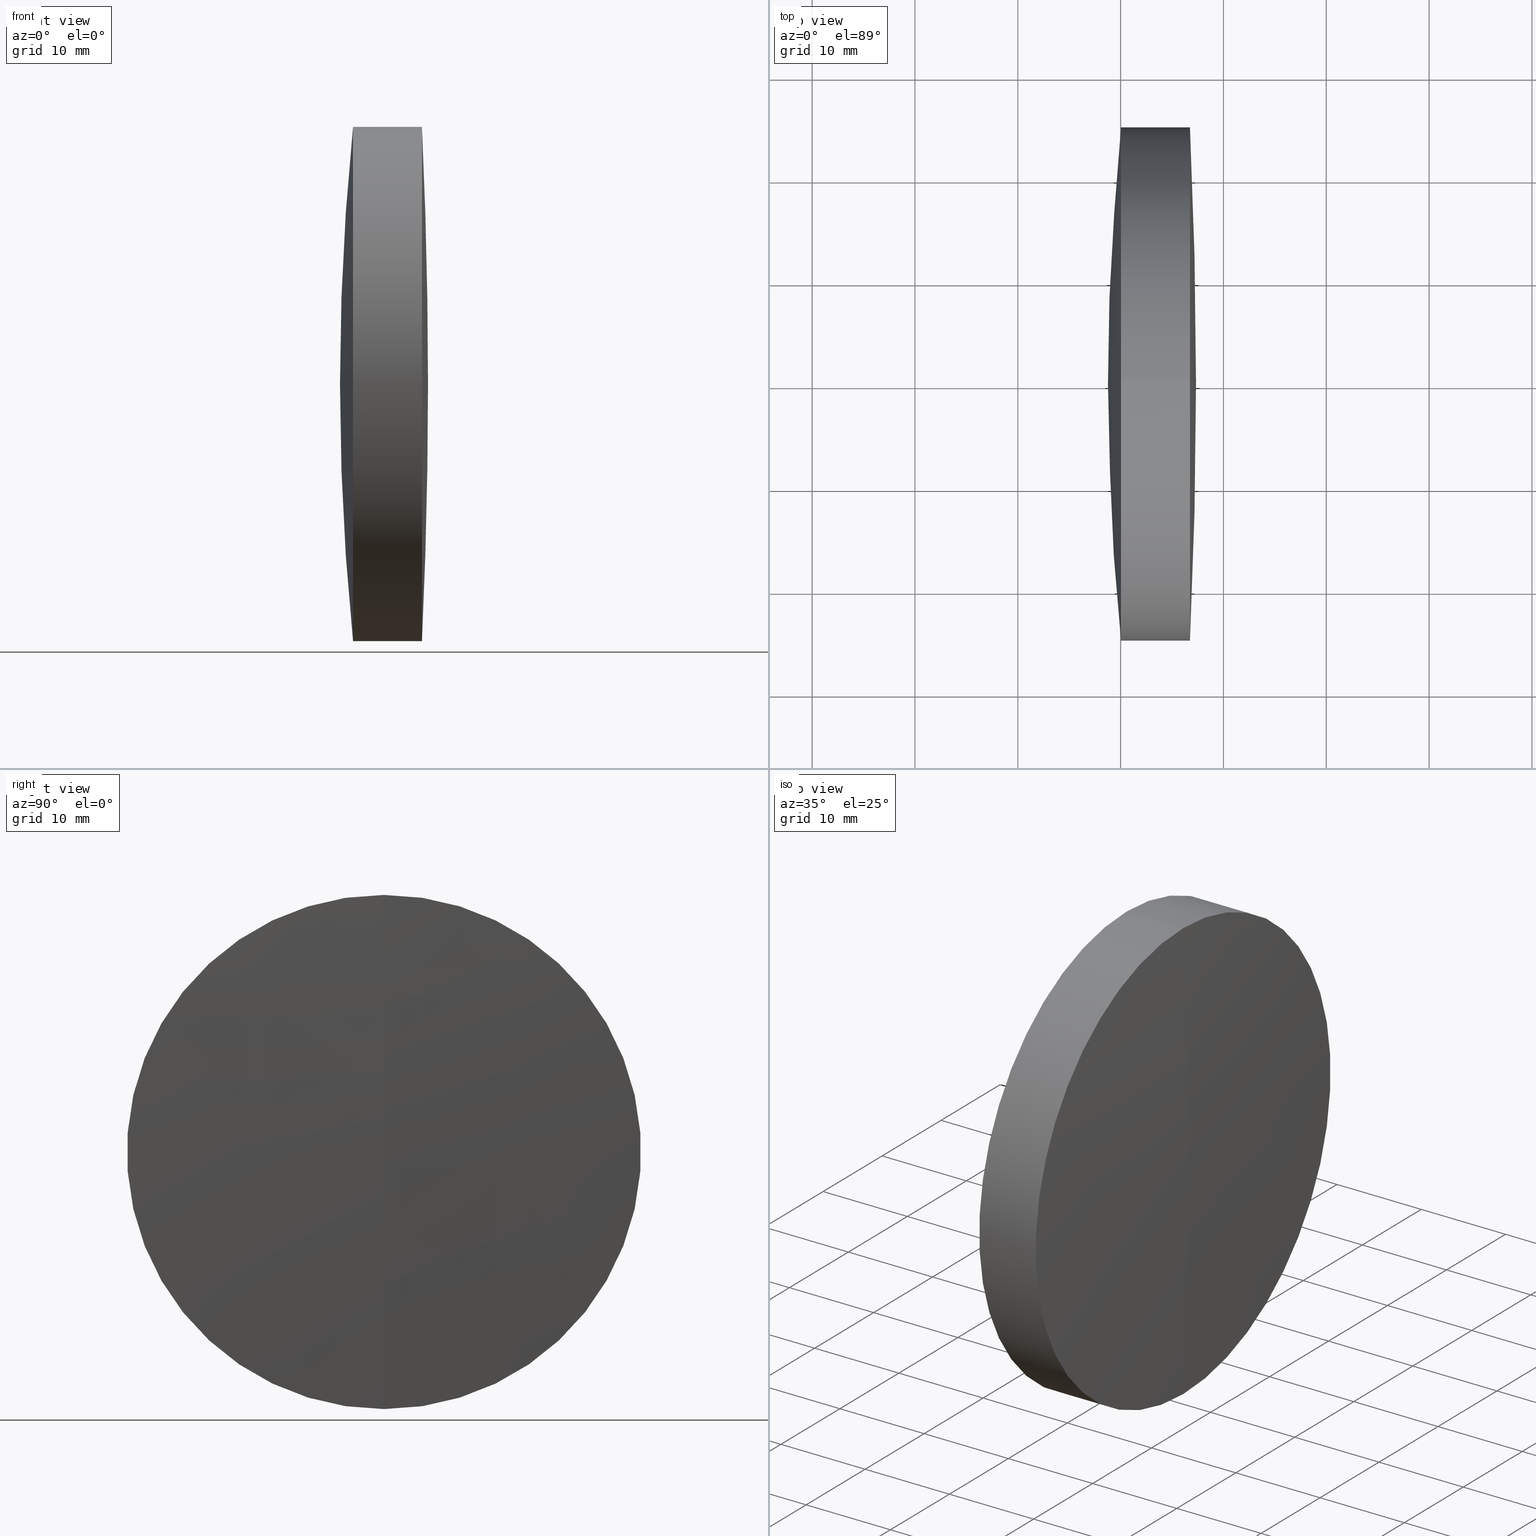
[diagram: canonical four-view strip — front | top / right | iso, engineering-drawing reading convention]
A machine part, canonical four-view strip (front | top / right | iso — engineering-drawing reading convention). The complete STEP part file that produces these views, byte-faithful:
ISO-10303-21;
HEADER;
FILE_DESCRIPTION (( 'STEP AP214' ),
    '1' );
FILE_NAME ('145082.STEP',
    '2019-05-16T05:50:06',
    ( 'user' ),
    ( '΢���й�' ),
    'SwSTEP 2.0',
    'SolidWorks 2016',
    '' );
FILE_SCHEMA (( 'AUTOMOTIVE_DESIGN' ));
ENDSEC;

DATA;
#1 = EDGE_LOOP ( 'NONE', ( #344, #215, #46, #134 ) ) ;
#2 = EDGE_CURVE ( 'NONE', #116, #27, #72, .T. ) ;
#3 = DIRECTION ( 'NONE',  ( 0.0000000000000000000, 1.000000000000000000, 0.0000000000000000000 ) ) ;
#4 = EDGE_CURVE ( 'NONE', #42, #206, #63, .T. ) ;
#5 = DIRECTION ( 'NONE',  ( 0.0000000000000000000, 0.0000000000000000000, 1.000000000000000000 ) ) ;
#6 = ORIENTED_EDGE ( 'NONE', *, *, #237, .F. ) ;
#7 = ORIENTED_EDGE ( 'NONE', *, *, #300, .F. ) ;
#8 = DIRECTION ( 'NONE',  ( 0.0000000000000000000, 0.0000000000000000000, 1.000000000000000000 ) ) ;
#9 = CARTESIAN_POINT ( 'NONE',  ( 102.0910746197044700, 0.0000000000000000000, 2.604248106336167600E-013 ) ) ;
#10 = EDGE_CURVE ( 'NONE', #42, #326, #14, .T. ) ;
#11 = CARTESIAN_POINT ( 'NONE',  ( 102.0910746197044700, 0.0000000000000000000, 2.604248106336167600E-013 ) ) ;
#12 = SURFACE_STYLE_USAGE ( .BOTH. , #122 ) ;
#13 = VERTEX_POINT ( 'NONE', #330 ) ;
#14 = CIRCLE ( 'NONE', #159, 162.2400000000000100 ) ;
#15 = VERTEX_POINT ( 'NONE', #214 ) ;
#16 = DIRECTION ( 'NONE',  ( 0.0000000000000000000, 0.0000000000000000000, -1.000000000000000000 ) ) ;
#17 = DIRECTION ( 'NONE',  ( 0.0000000000000000000, 0.0000000000000000000, 1.000000000000000000 ) ) ;
#18 = EDGE_CURVE ( 'NONE', #15, #52, #146, .T. ) ;
#19 = CYLINDRICAL_SURFACE ( 'NONE', #53, 25.00000000000008500 ) ;
#20 = DIRECTION ( 'NONE',  ( 0.0000000000000000000, -1.000000000000000000, 0.0000000000000000000 ) ) ;
#21 = PRESENTATION_LAYER_ASSIGNMENT (  '', '', ( #225 ) ) ;
#22 = ORIENTED_EDGE ( 'NONE', *, *, #49, .T. ) ;
#23 = ADVANCED_FACE ( 'NONE', ( #322 ), #112, .T. ) ;
#24 = AXIS2_PLACEMENT_3D ( 'NONE', #193, #199, #36 ) ;
#25 = ADVANCED_FACE ( 'NONE', ( #294 ), #19, .T. ) ;
#26 = DIRECTION ( 'NONE',  ( 0.0000000000000000000, 0.0000000000000000000, 1.000000000000000000 ) ) ;
#27 = VERTEX_POINT ( 'NONE', #272 ) ;
#28 = FACE_OUTER_BOUND ( 'NONE', #233, .T. ) ;
#29 =( LENGTH_UNIT ( ) NAMED_UNIT ( * ) SI_UNIT ( .MILLI., .METRE. ) );
#30 = PRODUCT_DEFINITION_SHAPE ( 'NONE', 'NONE',  #207 ) ;
#31 = DIRECTION ( 'NONE',  ( 0.0000000000000000000, 1.000000000000000000, 0.0000000000000000000 ) ) ;
#32 = ORIENTED_EDGE ( 'NONE', *, *, #180, .F. ) ;
#33 = AXIS2_PLACEMENT_3D ( 'NONE', #104, #295, #186 ) ;
#34 = APPLICATION_PROTOCOL_DEFINITION ( 'draft international standard', 'automotive_design', 1998, #182 ) ;
#35 = VECTOR ( 'NONE', #296, 1000.000000000000000 ) ;
#36 = DIRECTION ( 'NONE',  ( 0.0000000000000000000, 0.0000000000000000000, 1.000000000000000000 ) ) ;
#37 = CIRCLE ( 'NONE', #118, 530.6399999999998700 ) ;
#38 = ORIENTED_EDGE ( 'NONE', *, *, #300, .T. ) ;
#39 = APPLICATION_PROTOCOL_DEFINITION ( 'draft international standard', 'automotive_design', 1998, #137 ) ;
#40 = COLOUR_RGB ( '',1.000000000000000000, 1.000000000000000000, 1.000000000000000000 ) ;
#41 = AXIS2_PLACEMENT_3D ( 'NONE', #274, #89, #16 ) ;
#42 = VERTEX_POINT ( 'NONE', #147 ) ;
#43 = CIRCLE ( 'NONE', #259, 162.2400000000000100 ) ;
#44 = DIRECTION ( 'NONE',  ( 0.0000000000000000000, 0.0000000000000000000, 1.000000000000000000 ) ) ;
#45 = DIRECTION ( 'NONE',  ( 0.0000000000000000000, 1.000000000000000000, 0.0000000000000000000 ) ) ;
#46 = ORIENTED_EDGE ( 'NONE', *, *, #218, .F. ) ;
#47 = CARTESIAN_POINT ( 'NONE',  ( 260.0409607472518000, 0.0000000000000000000, 0.0000000000000000000 ) ) ;
#48 = SPHERICAL_SURFACE ( 'NONE', #317, 162.2400000000000100 ) ;
#49 = EDGE_CURVE ( 'NONE', #138, #13, #169, .T. ) ;
#50 = ORIENTED_EDGE ( 'NONE', *, *, #180, .T. ) ;
#51 = DIRECTION ( 'NONE',  ( 0.0000000000000000000, -1.224646799147353200E-016, 1.000000000000000000 ) ) ;
#52 = VERTEX_POINT ( 'NONE', #290 ) ;
#53 = AXIS2_PLACEMENT_3D ( 'NONE', #258, #314, #257 ) ;
#54 =( LENGTH_UNIT ( ) NAMED_UNIT ( * ) SI_UNIT ( .MILLI., .METRE. ) );
#55 = SPHERICAL_SURFACE ( 'NONE', #232, 530.6399999999998700 ) ;
#56 = FILL_AREA_STYLE_COLOUR ( '', #40 ) ;
#57 = SHAPE_DEFINITION_REPRESENTATION ( #30, #216 ) ;
#58 = CARTESIAN_POINT ( 'NONE',  ( -0.5519199926577972300, 3.061616997868370000E-015, -24.99999999999989300 ) ) ;
#59 = ORIENTED_EDGE ( 'NONE', *, *, #4, .T. ) ;
#60 = PRODUCT_RELATED_PRODUCT_CATEGORY ( 'part', '', ( #187 ) ) ;
#61 = DIRECTION ( 'NONE',  ( 0.0000000000000000000, 1.000000000000000000, 0.0000000000000000000 ) ) ;
#62 = VECTOR ( 'NONE', #157, 1000.000000000000000 ) ;
#63 = CIRCLE ( 'NONE', #144, 162.2400000000000100 ) ;
#64 = COLOUR_RGB ( '',1.000000000000000000, 1.000000000000000000, 1.000000000000000000 ) ;
#65 = DIRECTION ( 'NONE',  ( -0.0000000000000000000, 1.000000000000000000, 1.224646799147353200E-016 ) ) ;
#66 = DIRECTION ( 'NONE',  ( 0.0000000000000000000, -1.000000000000000000, 0.0000000000000000000 ) ) ;
#67 = ORIENTED_EDGE ( 'NONE', *, *, #18, .F. ) ;
#68 = ADVANCED_FACE ( 'NONE', ( #247 ), #81, .T. ) ;
#69 = DIRECTION ( 'NONE',  ( 1.000000000000000000, 0.0000000000000000000, 0.0000000000000000000 ) ) ;
#70 = AXIS2_PLACEMENT_3D ( 'NONE', #197, #282, #5 ) ;
#71 = ADVANCED_FACE ( 'NONE', ( #91 ), #132, .T. ) ;
#72 = CIRCLE ( 'NONE', #200, 24.99999999999968000 ) ;
#73 =( NAMED_UNIT ( * ) PLANE_ANGLE_UNIT ( ) SI_UNIT ( $, .RADIAN. ) );
#74 = CARTESIAN_POINT ( 'NONE',  ( 262.3933440983366300, 0.0000000000000000000, 0.0000000000000000000 ) ) ;
#75 = AXIS2_PLACEMENT_3D ( 'NONE', #11, #231, #328 ) ;
#76 = ORIENTED_EDGE ( 'NONE', *, *, #4, .F. ) ;
#77 = DIRECTION ( 'NONE',  ( 0.0000000000000000000, 0.0000000000000000000, 1.000000000000000000 ) ) ;
#78 = DIRECTION ( 'NONE',  ( -1.000000000000000000, -0.0000000000000000000, -0.0000000000000000000 ) ) ;
#79 = UNCERTAINTY_MEASURE_WITH_UNIT (LENGTH_MEASURE( 1.000000000000000100E-005 ), #54, 'distance_accuracy_value', 'NONE');
#80 = ORIENTED_EDGE ( 'NONE', *, *, #253, .T. ) ;
#81 = SPHERICAL_SURFACE ( 'NONE', #133, 162.2400000000000100 ) ;
#82 = SURFACE_STYLE_USAGE ( .BOTH. , #151 ) ;
#83 = DIRECTION ( 'NONE',  ( -1.000000000000000000, -0.0000000000000000000, -0.0000000000000000000 ) ) ;
#84 = EDGE_CURVE ( 'NONE', #254, #138, #43, .T. ) ;
#85 = CARTESIAN_POINT ( 'NONE',  ( 102.0910746197044700, 0.0000000000000000000, 2.604248106336167600E-013 ) ) ;
#86 = ORIENTED_EDGE ( 'NONE', *, *, #130, .F. ) ;
#87 = CARTESIAN_POINT ( 'NONE',  ( 505.4910746197044200, 0.0000000000000000000, -1.842447540899294800E-013 ) ) ;
#88 = AXIS2_PLACEMENT_3D ( 'NONE', #263, #345, #69 ) ;
#89 = DIRECTION ( 'NONE',  ( 0.0000000000000000000, -1.000000000000000000, 0.0000000000000000000 ) ) ;
#90 = FACE_OUTER_BOUND ( 'NONE', #298, .T. ) ;
#91 = FACE_OUTER_BOUND ( 'NONE', #168, .T. ) ;
#92 = DIRECTION ( 'NONE',  ( 0.0000000000000000000, 1.000000000000000000, 0.0000000000000000000 ) ) ;
#93 = SURFACE_STYLE_FILL_AREA ( #94 ) ;
#94 = FILL_AREA_STYLE ('',( #56 ) ) ;
#95 = CARTESIAN_POINT ( 'NONE',  ( 258.7710746197045100, 0.0000000000000000000, -1.691375111756477200E-013 ) ) ;
#96 = ORIENTED_EDGE ( 'NONE', *, *, #252, .T. ) ;
#97 = ORIENTED_EDGE ( 'NONE', *, *, #252, .F. ) ;
#98 = CARTESIAN_POINT ( 'NONE',  ( -263.3089253802954800, 0.0000000000000000000, 0.0000000000000000000 ) ) ;
#99 = CARTESIAN_POINT ( 'NONE',  ( 102.0910746197044700, 0.0000000000000000000, 2.604248106336167600E-013 ) ) ;
#100 = PRESENTATION_LAYER_ASSIGNMENT (  '', '', ( #107 ) ) ;
#101 = CIRCLE ( 'NONE', #110, 25.00000000000008500 ) ;
#102 = CARTESIAN_POINT ( 'NONE',  ( 264.3310746197045100, 0.0000000000000000000, 2.703591454683000400E-013 ) ) ;
#103 = ADVANCED_FACE ( 'NONE', ( #28 ), #240, .T. ) ;
#104 = CARTESIAN_POINT ( 'NONE',  ( -263.3089253802954800, 0.0000000000000000000, 0.0000000000000000000 ) ) ;
#105 = PRODUCT_DEFINITION_CONTEXT ( 'detailed design', #182, 'design' ) ;
#106 = FILL_AREA_STYLE_COLOUR ( '', #64 ) ;
#107 = STYLED_ITEM ( 'NONE', ( #222 ), #216 ) ;
#108 = ORIENTED_EDGE ( 'NONE', *, *, #220, .F. ) ;
#109 = VECTOR ( 'NONE', #337, 1000.000000000000000 ) ;
#110 = AXIS2_PLACEMENT_3D ( 'NONE', #117, #78, #153 ) ;
#111 = VECTOR ( 'NONE', #83, 1000.000000000000000 ) ;
#112 = CYLINDRICAL_SURFACE ( 'NONE', #319, 24.99999999999989300 ) ;
#113 =( LENGTH_UNIT ( ) NAMED_UNIT ( * ) SI_UNIT ( .MILLI., .METRE. ) );
#114 = AXIS2_PLACEMENT_3D ( 'NONE', #74, #287, #318 ) ;
#115 = DIRECTION ( 'NONE',  ( 0.0000000000000000000, 0.0000000000000000000, 1.000000000000000000 ) ) ;
#116 = VERTEX_POINT ( 'NONE', #260 ) ;
#117 = CARTESIAN_POINT ( 'NONE',  ( 262.3933440983366300, 0.0000000000000000000, 0.0000000000000000000 ) ) ;
#118 = AXIS2_PLACEMENT_3D ( 'NONE', #267, #278, #173 ) ;
#119 = CARTESIAN_POINT ( 'NONE',  ( 102.0910746197044700, 0.0000000000000000000, 2.604248106336167600E-013 ) ) ;
#120 = CIRCLE ( 'NONE', #201, 25.00000000000008500 ) ;
#121 = FACE_OUTER_BOUND ( 'NONE', #164, .T. ) ;
#122 = SURFACE_SIDE_STYLE ('',( #170 ) ) ;
#123 = AXIS2_PLACEMENT_3D ( 'NONE', #255, #174, #8 ) ;
#124 = DIRECTION ( 'NONE',  ( 0.0000000000000000000, 0.0000000000000000000, 1.000000000000000000 ) ) ;
#125 =( NAMED_UNIT ( * ) PLANE_ANGLE_UNIT ( ) SI_UNIT ( $, .RADIAN. ) );
#126 = ADVANCED_FACE ( 'NONE', ( #121 ), #304, .T. ) ;
#127 = ORIENTED_EDGE ( 'NONE', *, *, #49, .F. ) ;
#128 = EDGE_LOOP ( 'NONE', ( #76, #250, #6 ) ) ;
#129 = ADVANCED_FACE ( 'NONE', ( #152 ), #229, .F. ) ;
#130 = EDGE_CURVE ( 'NONE', #52, #156, #203, .T. ) ;
#131 = CARTESIAN_POINT ( 'NONE',  ( 267.3310746197044000, 0.0000000000000000000, 3.249232887497756800E-014 ) ) ;
#132 = CYLINDRICAL_SURFACE ( 'NONE', #166, 25.00000000000008500 ) ;
#133 = AXIS2_PLACEMENT_3D ( 'NONE', #189, #45, #17 ) ;
#134 = ORIENTED_EDGE ( 'NONE', *, *, #312, .F. ) ;
#135 = CARTESIAN_POINT ( 'NONE',  ( -263.3089253802954800, 0.0000000000000000000, 0.0000000000000000000 ) ) ;
#136 = CARTESIAN_POINT ( 'NONE',  ( 262.3933440983366300, 0.0000000000000000000, 0.0000000000000000000 ) ) ;
#137 = APPLICATION_CONTEXT ( 'automotive_design' ) ;
#138 = VERTEX_POINT ( 'NONE', #321 ) ;
#139 = MECHANICAL_DESIGN_GEOMETRIC_PRESENTATION_REPRESENTATION (  '', ( #107 ), #281 ) ;
#140 = CARTESIAN_POINT ( 'NONE',  ( 266.7418359624271600, 0.0000000000000000000, 0.0000000000000000000 ) ) ;
#141 = DIRECTION ( 'NONE',  ( 0.0000000000000000000, 0.0000000000000000000, 1.000000000000000000 ) ) ;
#142 = PRODUCT_CONTEXT ( 'NONE', #137, 'mechanical' ) ;
#143 = ORIENTED_EDGE ( 'NONE', *, *, #2, .F. ) ;
#144 = AXIS2_PLACEMENT_3D ( 'NONE', #85, #306, #51 ) ;
#145 = UNCERTAINTY_MEASURE_WITH_UNIT (LENGTH_MEASURE( 1.000000000000000100E-005 ), #113, 'distance_accuracy_value', 'NONE');
#146 = CIRCLE ( 'NONE', #188, 25.00000000000008900 ) ;
#147 = CARTESIAN_POINT ( 'NONE',  ( 264.3310746197044500, 0.0000000000000000000, 2.703591454683000400E-013 ) ) ;
#148 = ORIENTED_EDGE ( 'NONE', *, *, #130, .T. ) ;
#149 = AXIS2_PLACEMENT_3D ( 'NONE', #195, #158, #141 ) ;
#150 = LINE ( 'NONE', #165, #35 ) ;
#151 = SURFACE_SIDE_STYLE ('',( #303 ) ) ;
#152 = FACE_OUTER_BOUND ( 'NONE', #177, .T. ) ;
#153 = DIRECTION ( 'NONE',  ( 0.0000000000000000000, 0.0000000000000000000, 1.000000000000000000 ) ) ;
#154 =( NAMED_UNIT ( * ) SI_UNIT ( $, .STERADIAN. ) SOLID_ANGLE_UNIT ( ) );
#155 =( GEOMETRIC_REPRESENTATION_CONTEXT ( 3 ) GLOBAL_UNCERTAINTY_ASSIGNED_CONTEXT ( ( #145 ) ) GLOBAL_UNIT_ASSIGNED_CONTEXT ( ( #113, #125, #179 ) ) REPRESENTATION_CONTEXT ( 'NONE', 'WORKASPACE' ) );
#156 = VERTEX_POINT ( 'NONE', #95 ) ;
#157 = DIRECTION ( 'NONE',  ( -1.000000000000000000, -0.0000000000000000000, -0.0000000000000000000 ) ) ;
#158 = DIRECTION ( 'NONE',  ( -1.000000000000000000, -0.0000000000000000000, -0.0000000000000000000 ) ) ;
#159 = AXIS2_PLACEMENT_3D ( 'NONE', #246, #20, #204 ) ;
#160 = CLOSED_SHELL ( 'NONE', ( #68, #71, #103, #235, #25, #289 ) ) ;
#161 = ORIENTED_EDGE ( 'NONE', *, *, #275, .T. ) ;
#162 =( NAMED_UNIT ( * ) SI_UNIT ( $, .STERADIAN. ) SOLID_ANGLE_UNIT ( ) );
#163 = ORIENTED_EDGE ( 'NONE', *, *, #333, .F. ) ;
#164 = EDGE_LOOP ( 'NONE', ( #108, #172, #283, #127 ) ) ;
#165 = CARTESIAN_POINT ( 'NONE',  ( -0.5519199926577972300, 0.0000000000000000000, 24.99999999999989300 ) ) ;
#166 = AXIS2_PLACEMENT_3D ( 'NONE', #211, #271, #44 ) ;
#167 = DIRECTION ( 'NONE',  ( 0.0000000000000000000, 0.0000000000000000000, 1.000000000000000000 ) ) ;
#168 = EDGE_LOOP ( 'NONE', ( #316, #320, #67, #97 ) ) ;
#169 = CIRCLE ( 'NONE', #205, 25.00000000000011000 ) ;
#170 = SURFACE_STYLE_FILL_AREA ( #334 ) ;
#171 = PRESENTATION_LAYER_ASSIGNMENT (  '', '', ( #268 ) ) ;
#172 = ORIENTED_EDGE ( 'NONE', *, *, #2, .T. ) ;
#173 = DIRECTION ( 'NONE',  ( 0.0000000000000000000, -1.224646799147353200E-016, 1.000000000000000000 ) ) ;
#174 = DIRECTION ( 'NONE',  ( -1.000000000000000000, -0.0000000000000000000, -0.0000000000000000000 ) ) ;
#175 = ADVANCED_FACE ( 'NONE', ( #196 ), #48, .F. ) ;
#176 =( NAMED_UNIT ( * ) SI_UNIT ( $, .STERADIAN. ) SOLID_ANGLE_UNIT ( ) );
#177 = EDGE_LOOP ( 'NONE', ( #185, #224, #22 ) ) ;
#178 = SPHERICAL_SURFACE ( 'NONE', #181, 530.6399999999998700 ) ;
#179 =( NAMED_UNIT ( * ) SI_UNIT ( $, .STERADIAN. ) SOLID_ANGLE_UNIT ( ) );
#180 = EDGE_CURVE ( 'NONE', #273, #116, #37, .T. ) ;
#181 = AXIS2_PLACEMENT_3D ( 'NONE', #98, #31, #115 ) ;
#182 = APPLICATION_CONTEXT ( 'automotive_design' ) ;
#183 = LINE ( 'NONE', #299, #62 ) ;
#184 = DIRECTION ( 'NONE',  ( 0.0000000000000000000, 0.0000000000000000000, 1.000000000000000000 ) ) ;
#185 = ORIENTED_EDGE ( 'NONE', *, *, #241, .F. ) ;
#186 = DIRECTION ( 'NONE',  ( 0.0000000000000000000, 0.0000000000000000000, -1.000000000000000000 ) ) ;
#187 = PRODUCT ( '145082', '145082', '', ( #142 ) ) ;
#188 = AXIS2_PLACEMENT_3D ( 'NONE', #47, #239, #26 ) ;
#189 = CARTESIAN_POINT ( 'NONE',  ( 102.0910746197044700, 0.0000000000000000000, 2.604248106336167600E-013 ) ) ;
#190 = ORIENTED_EDGE ( 'NONE', *, *, #253, .F. ) ;
#191 = PRODUCT_DEFINITION_FORMATION_WITH_SPECIFIED_SOURCE ( '�κ�', '', #187, .NOT_KNOWN. ) ;
#192 = DIRECTION ( 'NONE',  ( 0.0000000000000000000, 0.0000000000000000000, 1.000000000000000000 ) ) ;
#193 = CARTESIAN_POINT ( 'NONE',  ( 505.4910746197044200, 0.0000000000000000000, -1.842447540899294800E-013 ) ) ;
#194 = CIRCLE ( 'NONE', #33, 530.6399999999998700 ) ;
#195 = CARTESIAN_POINT ( 'NONE',  ( -0.5519199926577972300, 0.0000000000000000000, 0.0000000000000000000 ) ) ;
#196 = FACE_OUTER_BOUND ( 'NONE', #280, .T. ) ;
#197 = CARTESIAN_POINT ( 'NONE',  ( 505.4910746197044200, 0.0000000000000000000, -1.842447540899294800E-013 ) ) ;
#198 = LINE ( 'NONE', #58, #111 ) ;
#199 = DIRECTION ( 'NONE',  ( 0.0000000000000000000, 1.000000000000000000, 0.0000000000000000000 ) ) ;
#200 = AXIS2_PLACEMENT_3D ( 'NONE', #140, #248, #212 ) ;
#201 = AXIS2_PLACEMENT_3D ( 'NONE', #244, #270, #167 ) ;
#202 = DIRECTION ( 'NONE',  ( -0.0000000000000000000, 1.000000000000000000, 1.224646799147353200E-016 ) ) ;
#203 = CIRCLE ( 'NONE', #245, 246.7199999999999700 ) ;
#204 = DIRECTION ( 'NONE',  ( 0.0000000000000000000, 0.0000000000000000000, -1.000000000000000000 ) ) ;
#205 = AXIS2_PLACEMENT_3D ( 'NONE', #136, #217, #285 ) ;
#206 = VERTEX_POINT ( 'NONE', #292 ) ;
#207 = PRODUCT_DEFINITION ( 'δ֪', '', #191, #105 ) ;
#208 = ADVANCED_FACE ( 'NONE', ( #90 ), #178, .T. ) ;
#209 = UNCERTAINTY_MEASURE_WITH_UNIT (LENGTH_MEASURE( 1.000000000000000100E-005 ), #29, 'distance_accuracy_value', 'NONE');
#210 = SPHERICAL_SURFACE ( 'NONE', #346, 162.2400000000000100 ) ;
#211 = CARTESIAN_POINT ( 'NONE',  ( 124.5233095260452400, 0.0000000000000000000, 0.0000000000000000000 ) ) ;
#212 = DIRECTION ( 'NONE',  ( 0.0000000000000000000, 0.0000000000000000000, 1.000000000000000000 ) ) ;
#213 =( GEOMETRIC_REPRESENTATION_CONTEXT ( 3 ) GLOBAL_UNCERTAINTY_ASSIGNED_CONTEXT ( ( #79 ) ) GLOBAL_UNIT_ASSIGNED_CONTEXT ( ( #54, #249, #176 ) ) REPRESENTATION_CONTEXT ( 'NONE', 'WORKASPACE' ) );
#214 = CARTESIAN_POINT ( 'NONE',  ( 260.0409607472518000, 0.0000000000000000000, 25.00000000000009900 ) ) ;
#215 = ORIENTED_EDGE ( 'NONE', *, *, #220, .T. ) ;
#216 = ADVANCED_BREP_SHAPE_REPRESENTATION ( '145082', ( #269, #323, #88 ), #155 ) ;
#217 = DIRECTION ( 'NONE',  ( -1.000000000000000000, -0.0000000000000000000, -0.0000000000000000000 ) ) ;
#218 = EDGE_CURVE ( 'NONE', #13, #138, #315, .T. ) ;
#219 = FACE_OUTER_BOUND ( 'NONE', #307, .T. ) ;
#220 = EDGE_CURVE ( 'NONE', #116, #138, #198, .T. ) ;
#221 = CARTESIAN_POINT ( 'NONE',  ( 262.3933440983366300, 0.0000000000000000000, 25.00000000000008500 ) ) ;
#222 = PRESENTATION_STYLE_ASSIGNMENT (( #12 ) ) ;
#223 = MECHANICAL_DESIGN_GEOMETRIC_PRESENTATION_REPRESENTATION (  '', ( #225 ), #327 ) ;
#224 = ORIENTED_EDGE ( 'NONE', *, *, #84, .T. ) ;
#225 = STYLED_ITEM ( 'NONE', ( #310 ), #269 ) ;
#226 = CIRCLE ( 'NONE', #123, 25.00000000000008900 ) ;
#227 = CIRCLE ( 'NONE', #308, 246.7199999999999700 ) ;
#228 = CARTESIAN_POINT ( 'NONE',  ( 266.7418359624271600, 0.0000000000000000000, 0.0000000000000000000 ) ) ;
#229 = SPHERICAL_SURFACE ( 'NONE', #75, 162.2400000000000100 ) ;
#230 = DIRECTION ( 'NONE',  ( 0.0000000000000000000, -1.224646799147353200E-016, 1.000000000000000000 ) ) ;
#231 = DIRECTION ( 'NONE',  ( 0.0000000000000000000, 1.000000000000000000, 0.0000000000000000000 ) ) ;
#232 = AXIS2_PLACEMENT_3D ( 'NONE', #135, #3, #192 ) ;
#233 = EDGE_LOOP ( 'NONE', ( #265, #148, #190 ) ) ;
#234 =( NAMED_UNIT ( * ) PLANE_ANGLE_UNIT ( ) SI_UNIT ( $, .RADIAN. ) );
#235 = ADVANCED_FACE ( 'NONE', ( #219 ), #311, .T. ) ;
#236 =( LENGTH_UNIT ( ) NAMED_UNIT ( * ) SI_UNIT ( .MILLI., .METRE. ) );
#237 = EDGE_CURVE ( 'NONE', #206, #326, #120, .T. ) ;
#238 = ORIENTED_EDGE ( 'NONE', *, *, #218, .T. ) ;
#239 = DIRECTION ( 'NONE',  ( -1.000000000000000000, -0.0000000000000000000, -0.0000000000000000000 ) ) ;
#240 = SPHERICAL_SURFACE ( 'NONE', #70, 246.7199999999999700 ) ;
#241 = EDGE_CURVE ( 'NONE', #254, #13, #332, .T. ) ;
#242 = EDGE_LOOP ( 'NONE', ( #341, #59, #251 ) ) ;
#243 = CIRCLE ( 'NONE', #339, 24.99999999999968000 ) ;
#244 = CARTESIAN_POINT ( 'NONE',  ( 262.3933440983366300, 0.0000000000000000000, 0.0000000000000000000 ) ) ;
#245 = AXIS2_PLACEMENT_3D ( 'NONE', #279, #65, #342 ) ;
#246 = CARTESIAN_POINT ( 'NONE',  ( 102.0910746197044700, 0.0000000000000000000, 2.604248106336167600E-013 ) ) ;
#247 = FACE_OUTER_BOUND ( 'NONE', #242, .T. ) ;
#248 = DIRECTION ( 'NONE',  ( -1.000000000000000000, -0.0000000000000000000, -0.0000000000000000000 ) ) ;
#249 =( NAMED_UNIT ( * ) PLANE_ANGLE_UNIT ( ) SI_UNIT ( $, .RADIAN. ) );
#250 = ORIENTED_EDGE ( 'NONE', *, *, #10, .T. ) ;
#251 = ORIENTED_EDGE ( 'NONE', *, *, #335, .F. ) ;
#252 = EDGE_CURVE ( 'NONE', #326, #15, #183, .T. ) ;
#253 = EDGE_CURVE ( 'NONE', #15, #156, #227, .T. ) ;
#254 = VERTEX_POINT ( 'NONE', #102 ) ;
#255 = CARTESIAN_POINT ( 'NONE',  ( 260.0409607472518000, 0.0000000000000000000, 0.0000000000000000000 ) ) ;
#256 = EDGE_LOOP ( 'NONE', ( #163, #264, #96, #7 ) ) ;
#257 = DIRECTION ( 'NONE',  ( 0.0000000000000000000, 0.0000000000000000000, 1.000000000000000000 ) ) ;
#258 = CARTESIAN_POINT ( 'NONE',  ( 124.5233095260452400, 0.0000000000000000000, 0.0000000000000000000 ) ) ;
#259 = AXIS2_PLACEMENT_3D ( 'NONE', #119, #202, #230 ) ;
#260 = CARTESIAN_POINT ( 'NONE',  ( 266.7418359624271600, 3.061616997868357000E-015, -24.99999999999968000 ) ) ;
#261 = EDGE_LOOP ( 'NONE', ( #32, #161, #143 ) ) ;
#262 = COLOUR_RGB ( '',1.000000000000000000, 1.000000000000000000, 1.000000000000000000 ) ;
#263 = CARTESIAN_POINT ( 'NONE',  ( 0.0000000000000000000, 0.0000000000000000000, 0.0000000000000000000 ) ) ;
#264 = ORIENTED_EDGE ( 'NONE', *, *, #237, .T. ) ;
#265 = ORIENTED_EDGE ( 'NONE', *, *, #18, .T. ) ;
#266 = FACE_OUTER_BOUND ( 'NONE', #261, .T. ) ;
#267 = CARTESIAN_POINT ( 'NONE',  ( -263.3089253802954800, 0.0000000000000000000, 0.0000000000000000000 ) ) ;
#268 = STYLED_ITEM ( 'NONE', ( #313 ), #323 ) ;
#269 = MANIFOLD_SOLID_BREP ( '��ת1', #160 ) ;
#270 = DIRECTION ( 'NONE',  ( -1.000000000000000000, -0.0000000000000000000, -0.0000000000000000000 ) ) ;
#271 = DIRECTION ( 'NONE',  ( -1.000000000000000000, -0.0000000000000000000, -0.0000000000000000000 ) ) ;
#272 = CARTESIAN_POINT ( 'NONE',  ( 266.7418359624271600, 0.0000000000000000000, 24.99999999999968000 ) ) ;
#273 = VERTEX_POINT ( 'NONE', #131 ) ;
#274 = CARTESIAN_POINT ( 'NONE',  ( 102.0910746197044700, 0.0000000000000000000, 2.604248106336167600E-013 ) ) ;
#275 = EDGE_CURVE ( 'NONE', #273, #27, #194, .T. ) ;
#276 = ORIENTED_EDGE ( 'NONE', *, *, #275, .F. ) ;
#277 = LINE ( 'NONE', #301, #109 ) ;
#278 = DIRECTION ( 'NONE',  ( -0.0000000000000000000, 1.000000000000000000, 1.224646799147353200E-016 ) ) ;
#279 = CARTESIAN_POINT ( 'NONE',  ( 505.4910746197044200, 0.0000000000000000000, -1.842447540899294800E-013 ) ) ;
#280 = EDGE_LOOP ( 'NONE', ( #288, #325, #238 ) ) ;
#281 =( GEOMETRIC_REPRESENTATION_CONTEXT ( 3 ) GLOBAL_UNCERTAINTY_ASSIGNED_CONTEXT ( ( #209 ) ) GLOBAL_UNIT_ASSIGNED_CONTEXT ( ( #29, #73, #154 ) ) REPRESENTATION_CONTEXT ( 'NONE', 'WORKASPACE' ) );
#282 = DIRECTION ( 'NONE',  ( 0.0000000000000000000, 1.000000000000000000, 0.0000000000000000000 ) ) ;
#283 = ORIENTED_EDGE ( 'NONE', *, *, #312, .T. ) ;
#284 = SURFACE_SIDE_STYLE ('',( #93 ) ) ;
#285 = DIRECTION ( 'NONE',  ( 0.0000000000000000000, 0.0000000000000000000, 1.000000000000000000 ) ) ;
#286 = MECHANICAL_DESIGN_GEOMETRIC_PRESENTATION_REPRESENTATION (  '', ( #268 ), #213 ) ;
#287 = DIRECTION ( 'NONE',  ( -1.000000000000000000, -0.0000000000000000000, -0.0000000000000000000 ) ) ;
#288 = ORIENTED_EDGE ( 'NONE', *, *, #84, .F. ) ;
#289 = ADVANCED_FACE ( 'NONE', ( #293 ), #210, .T. ) ;
#290 = CARTESIAN_POINT ( 'NONE',  ( 260.0409607472518000, 3.061616997868394900E-015, -25.00000000000028100 ) ) ;
#291 = EDGE_CURVE ( 'NONE', #27, #116, #243, .T. ) ;
#292 = CARTESIAN_POINT ( 'NONE',  ( 262.3933440983366300, 3.061616997868393700E-015, -25.00000000000008500 ) ) ;
#293 = FACE_OUTER_BOUND ( 'NONE', #128, .T. ) ;
#294 = FACE_OUTER_BOUND ( 'NONE', #256, .T. ) ;
#295 = DIRECTION ( 'NONE',  ( 0.0000000000000000000, -1.000000000000000000, 0.0000000000000000000 ) ) ;
#296 = DIRECTION ( 'NONE',  ( -1.000000000000000000, -0.0000000000000000000, -0.0000000000000000000 ) ) ;
#297 = UNCERTAINTY_MEASURE_WITH_UNIT (LENGTH_MEASURE( 1.000000000000000100E-005 ), #236, 'distance_accuracy_value', 'NONE');
#298 = EDGE_LOOP ( 'NONE', ( #276, #50, #340 ) ) ;
#299 = CARTESIAN_POINT ( 'NONE',  ( 124.5233095260452400, 0.0000000000000000000, 25.00000000000008500 ) ) ;
#300 = EDGE_CURVE ( 'NONE', #52, #15, #226, .T. ) ;
#301 = CARTESIAN_POINT ( 'NONE',  ( 124.5233095260452400, 3.061616997868393700E-015, -25.00000000000008500 ) ) ;
#302 = DIRECTION ( 'NONE',  ( 0.0000000000000000000, 0.0000000000000000000, -1.000000000000000000 ) ) ;
#303 = SURFACE_STYLE_FILL_AREA ( #329 ) ;
#304 = CYLINDRICAL_SURFACE ( 'NONE', #149, 24.99999999999989300 ) ;
#305 = DIRECTION ( 'NONE',  ( -1.000000000000000000, -0.0000000000000000000, -0.0000000000000000000 ) ) ;
#306 = DIRECTION ( 'NONE',  ( -0.0000000000000000000, 1.000000000000000000, 1.224646799147353200E-016 ) ) ;
#307 = EDGE_LOOP ( 'NONE', ( #86, #38, #80 ) ) ;
#308 = AXIS2_PLACEMENT_3D ( 'NONE', #87, #66, #302 ) ;
#309 = FILL_AREA_STYLE_COLOUR ( '', #262 ) ;
#310 = PRESENTATION_STYLE_ASSIGNMENT (( #82 ) ) ;
#311 = SPHERICAL_SURFACE ( 'NONE', #24, 246.7199999999999700 ) ;
#312 = EDGE_CURVE ( 'NONE', #27, #13, #150, .T. ) ;
#313 = PRESENTATION_STYLE_ASSIGNMENT (( #338 ) ) ;
#314 = DIRECTION ( 'NONE',  ( -1.000000000000000000, -0.0000000000000000000, -0.0000000000000000000 ) ) ;
#315 = CIRCLE ( 'NONE', #114, 25.00000000000011000 ) ;
#316 = ORIENTED_EDGE ( 'NONE', *, *, #335, .T. ) ;
#317 = AXIS2_PLACEMENT_3D ( 'NONE', #9, #61, #124 ) ;
#318 = DIRECTION ( 'NONE',  ( 0.0000000000000000000, 0.0000000000000000000, 1.000000000000000000 ) ) ;
#319 = AXIS2_PLACEMENT_3D ( 'NONE', #324, #343, #184 ) ;
#320 = ORIENTED_EDGE ( 'NONE', *, *, #333, .T. ) ;
#321 = CARTESIAN_POINT ( 'NONE',  ( 262.3933440983366300, 3.061616997868401600E-015, -24.99999999999989700 ) ) ;
#322 = FACE_OUTER_BOUND ( 'NONE', #1, .T. ) ;
#323 = MANIFOLD_SOLID_BREP ( '��ת3', #336 ) ;
#324 = CARTESIAN_POINT ( 'NONE',  ( -0.5519199926577972300, 0.0000000000000000000, 0.0000000000000000000 ) ) ;
#325 = ORIENTED_EDGE ( 'NONE', *, *, #241, .T. ) ;
#326 = VERTEX_POINT ( 'NONE', #221 ) ;
#327 =( GEOMETRIC_REPRESENTATION_CONTEXT ( 3 ) GLOBAL_UNCERTAINTY_ASSIGNED_CONTEXT ( ( #297 ) ) GLOBAL_UNIT_ASSIGNED_CONTEXT ( ( #236, #234, #162 ) ) REPRESENTATION_CONTEXT ( 'NONE', 'WORKASPACE' ) );
#328 = DIRECTION ( 'NONE',  ( 0.0000000000000000000, 0.0000000000000000000, 1.000000000000000000 ) ) ;
#329 = FILL_AREA_STYLE ('',( #309 ) ) ;
#330 = CARTESIAN_POINT ( 'NONE',  ( 262.3933440983366300, 0.0000000000000000000, 25.00000000000015300 ) ) ;
#331 = DIRECTION ( 'NONE',  ( 0.0000000000000000000, 0.0000000000000000000, 1.000000000000000000 ) ) ;
#332 = CIRCLE ( 'NONE', #41, 162.2400000000000100 ) ;
#333 = EDGE_CURVE ( 'NONE', #206, #52, #277, .T. ) ;
#334 = FILL_AREA_STYLE ('',( #106 ) ) ;
#335 = EDGE_CURVE ( 'NONE', #326, #206, #101, .T. ) ;
#336 = CLOSED_SHELL ( 'NONE', ( #208, #23, #129, #175, #126, #347 ) ) ;
#337 = DIRECTION ( 'NONE',  ( -1.000000000000000000, -0.0000000000000000000, -0.0000000000000000000 ) ) ;
#338 = SURFACE_STYLE_USAGE ( .BOTH. , #284 ) ;
#339 = AXIS2_PLACEMENT_3D ( 'NONE', #228, #305, #331 ) ;
#340 = ORIENTED_EDGE ( 'NONE', *, *, #291, .F. ) ;
#341 = ORIENTED_EDGE ( 'NONE', *, *, #10, .F. ) ;
#342 = DIRECTION ( 'NONE',  ( 0.0000000000000000000, -1.224646799147353000E-016, 1.000000000000000000 ) ) ;
#343 = DIRECTION ( 'NONE',  ( -1.000000000000000000, -0.0000000000000000000, -0.0000000000000000000 ) ) ;
#344 = ORIENTED_EDGE ( 'NONE', *, *, #291, .T. ) ;
#345 = DIRECTION ( 'NONE',  ( 0.0000000000000000000, 0.0000000000000000000, 1.000000000000000000 ) ) ;
#346 = AXIS2_PLACEMENT_3D ( 'NONE', #99, #92, #77 ) ;
#347 = ADVANCED_FACE ( 'NONE', ( #266 ), #55, .T. ) ;
ENDSEC;
END-ISO-10303-21;
